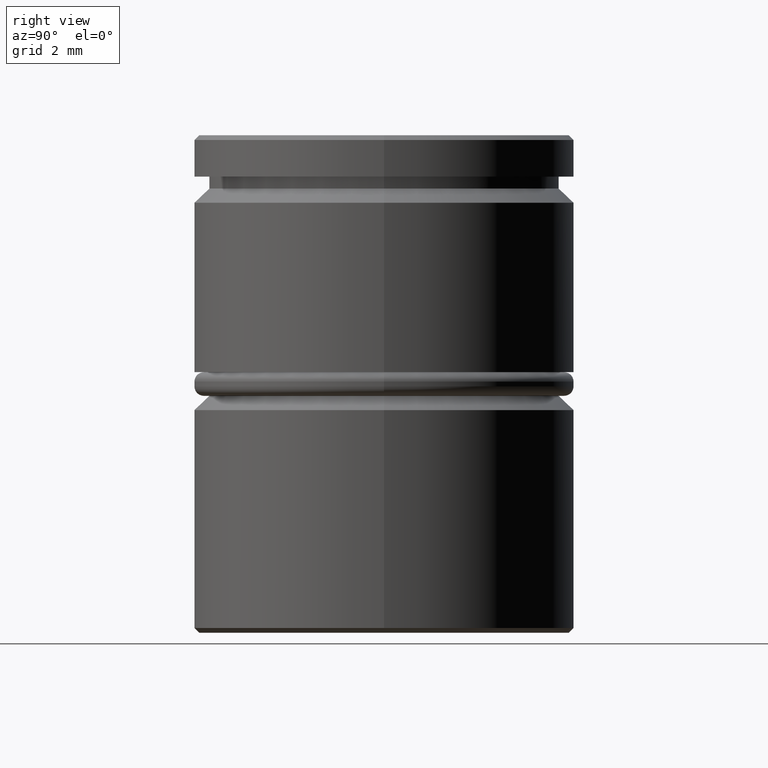
[diagram: clean part render]
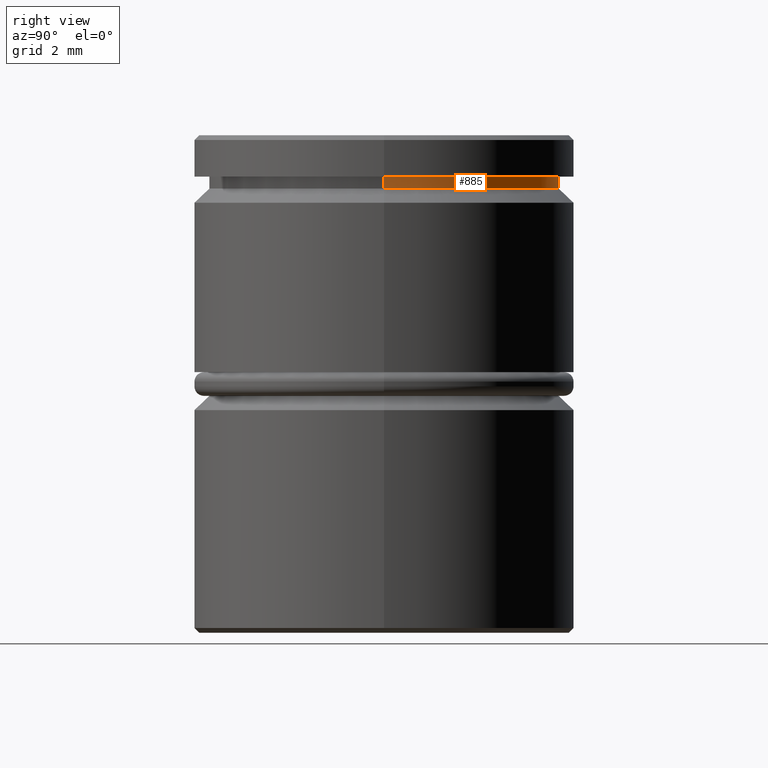
[diagram: same view with one face highlighted and labeled with its STEP entity id]
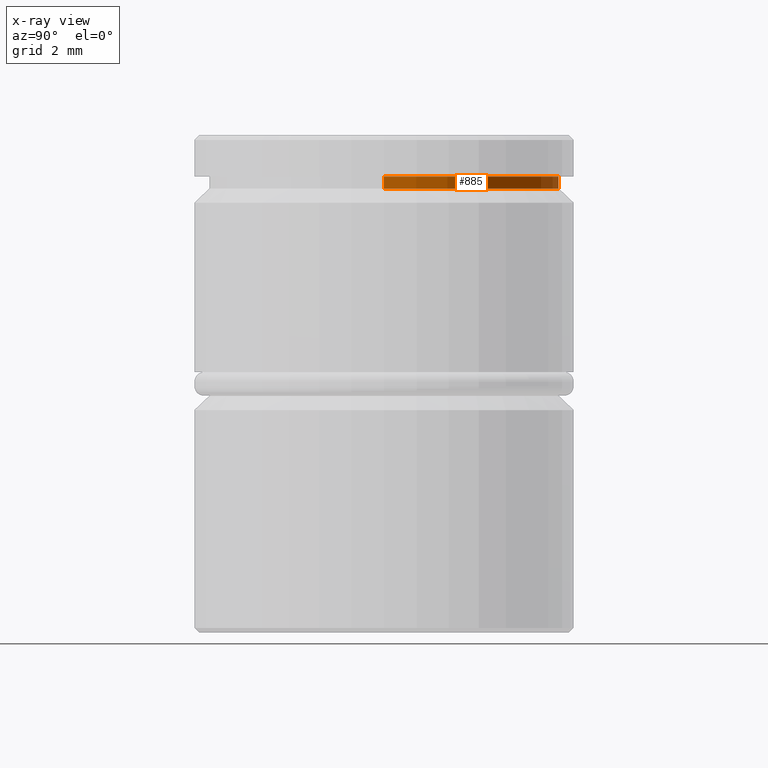
[diagram: x-ray of the same camera — body ghosted, the highlighted face saturated]
A machine part, right view. The second image highlights one B-rep face of the part: STEP entity #885.
The next image is the same camera in x-ray: the body ghosted, the highlighted face saturated — about 0% of this face is hidden behind the body in this view.
In plain terms, the highlighted cylindrical surface (partial cylindrical patch) has radius 3.7 mm, axis along (-0, -0, 1).
Its self-contained STEP definition (entity closure, byte-faithful):
#17 = AXIS2_PLACEMENT_3D ( 'NONE', #753, #667, #311 ) ;
#88 = LINE ( 'NONE', #184, #1089 ) ;
#91 = CARTESIAN_POINT ( 'NONE',  ( 3.700000000000000178, 0.000000000000000000, -0.8749999999999998890 ) ) ;
#115 = CARTESIAN_POINT ( 'NONE',  ( 3.700000000000000178, 0.000000000000000000, -1.125000000000000222 ) ) ;
#138 = VERTEX_POINT ( 'NONE', #449 ) ;
#184 = CARTESIAN_POINT ( 'NONE',  ( 3.700000000000000178, 0.000000000000000000, 0.000000000000000000 ) ) ;
#188 = DIRECTION ( 'NONE',  ( 1.000000000000000000, 0.000000000000000000, 0.000000000000000000 ) ) ;
#248 = VECTOR ( 'NONE', #1076, 1000.000000000000000 ) ;
#311 = DIRECTION ( 'NONE',  ( 1.000000000000000000, 0.000000000000000000, 0.000000000000000000 ) ) ;
#316 = DIRECTION ( 'NONE',  ( 1.000000000000000000, 0.000000000000000000, 0.000000000000000000 ) ) ;
#363 = CYLINDRICAL_SURFACE ( 'NONE', #547, 3.700000000000000178 ) ;
#426 = CIRCLE ( 'NONE', #966, 3.700000000000000178 ) ;
#433 = EDGE_CURVE ( 'NONE', #697, #138, #426, .T. ) ;
#449 = CARTESIAN_POINT ( 'NONE',  ( -3.700000000000000178, 4.531193156845206201E-16, -1.125000000000000222 ) ) ;
#531 = ORIENTED_EDGE ( 'NONE', *, *, #433, .T. ) ;
#547 = AXIS2_PLACEMENT_3D ( 'NONE', #826, #983, #188 ) ;
#551 = VERTEX_POINT ( 'NONE', #857 ) ;
#580 = EDGE_LOOP ( 'NONE', ( #531, #887, #623, #1010 ) ) ;
#619 = EDGE_CURVE ( 'NONE', #697, #960, #88, .T. ) ;
#623 = ORIENTED_EDGE ( 'NONE', *, *, #1067, .F. ) ;
#647 = FACE_OUTER_BOUND ( 'NONE', #580, .T. ) ;
#667 = DIRECTION ( 'NONE',  ( -0.000000000000000000, -0.000000000000000000, 1.000000000000000000 ) ) ;
#676 = EDGE_CURVE ( 'NONE', #138, #551, #1058, .T. ) ;
#697 = VERTEX_POINT ( 'NONE', #115 ) ;
#735 = CARTESIAN_POINT ( 'NONE',  ( -3.700000000000000178, 4.531193156845206201E-16, 0.000000000000000000 ) ) ;
#753 = CARTESIAN_POINT ( 'NONE',  ( 0.000000000000000000, 0.000000000000000000, -0.8749999999999998890 ) ) ;
#789 = DIRECTION ( 'NONE',  ( -0.000000000000000000, -0.000000000000000000, 1.000000000000000000 ) ) ;
#826 = CARTESIAN_POINT ( 'NONE',  ( 0.000000000000000000, 0.000000000000000000, 0.000000000000000000 ) ) ;
#857 = CARTESIAN_POINT ( 'NONE',  ( -3.700000000000000178, 4.531193156845206201E-16, -0.8749999999999998890 ) ) ;
#885 = ADVANCED_FACE ( 'NONE', ( #647 ), #363, .T. ) ;
#887 = ORIENTED_EDGE ( 'NONE', *, *, #676, .T. ) ;
#960 = VERTEX_POINT ( 'NONE', #91 ) ;
#966 = AXIS2_PLACEMENT_3D ( 'NONE', #1046, #789, #316 ) ;
#983 = DIRECTION ( 'NONE',  ( -0.000000000000000000, -0.000000000000000000, 1.000000000000000000 ) ) ;
#998 = CIRCLE ( 'NONE', #17, 3.700000000000000178 ) ;
#1010 = ORIENTED_EDGE ( 'NONE', *, *, #619, .F. ) ;
#1046 = CARTESIAN_POINT ( 'NONE',  ( 0.000000000000000000, 0.000000000000000000, -1.125000000000000222 ) ) ;
#1058 = LINE ( 'NONE', #735, #248 ) ;
#1067 = EDGE_CURVE ( 'NONE', #960, #551, #998, .T. ) ;
#1076 = DIRECTION ( 'NONE',  ( -0.000000000000000000, -0.000000000000000000, 1.000000000000000000 ) ) ;
#1089 = VECTOR ( 'NONE', #1166, 1000.000000000000000 ) ;
#1166 = DIRECTION ( 'NONE',  ( -0.000000000000000000, -0.000000000000000000, 1.000000000000000000 ) ) ;